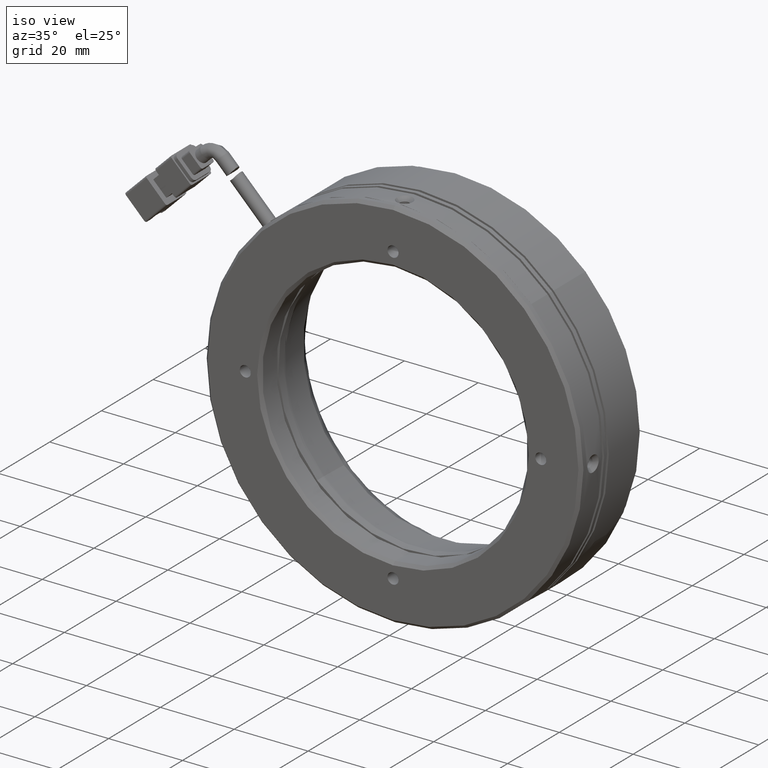
[diagram: clean part render]
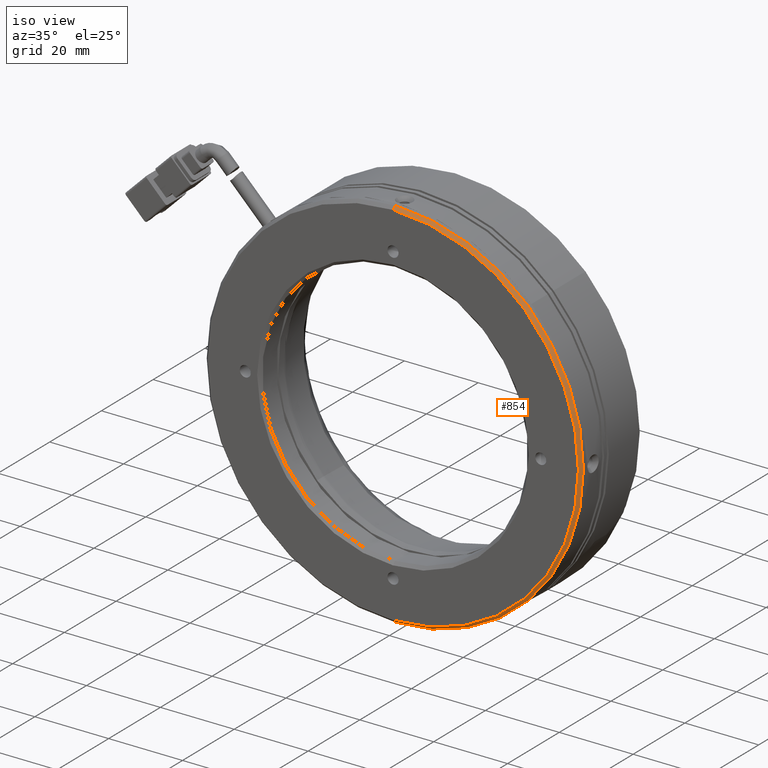
[diagram: same view with one face highlighted and labeled with its STEP entity id]
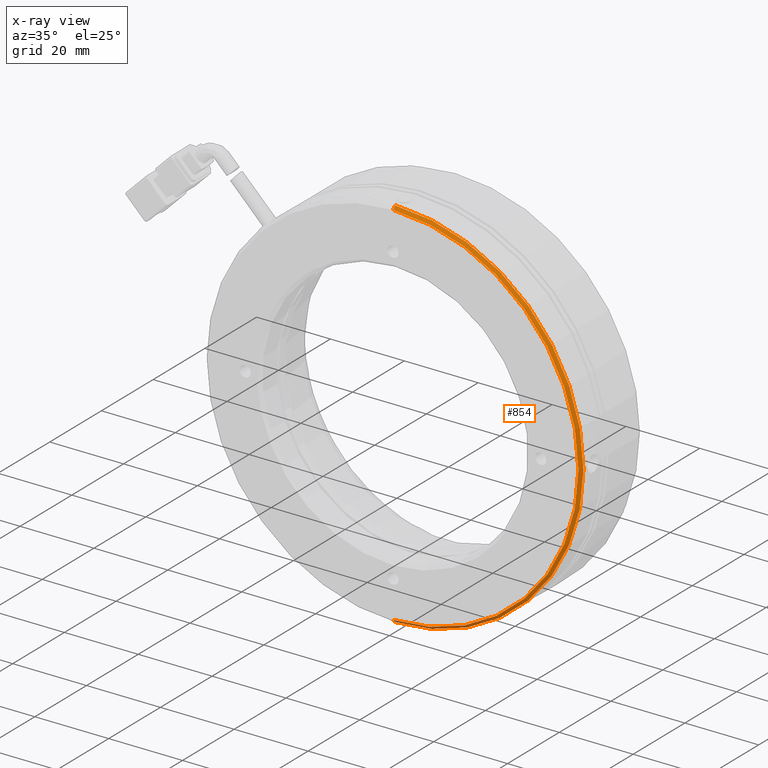
[diagram: x-ray of the same camera — body ghosted, the highlighted face saturated]
A machine part, iso view. The second image highlights one B-rep face of the part: STEP entity #854.
The next image is the same camera in x-ray: the body ghosted, the highlighted face saturated — about 0% of this face is hidden behind the body in this view.
In plain terms, the highlighted conical surface has half-angle 45 deg.
Its self-contained STEP definition (entity closure, byte-faithful):
#269 = CIRCLE ( 'NONE', #83889, 50.19999999999999600 ) ;
#489 = CARTESIAN_POINT ( 'NONE',  ( 6.245698675651500400E-015, 2.207147174518522700, -51.00000000000000000 ) ) ;
#854 = ADVANCED_FACE ( 'NONE', ( #39566 ), #11143, .T. ) ;
#10391 = CARTESIAN_POINT ( 'NONE',  ( 6.196712803685607000E-015, 1.407147174518515100, -50.19999999999999600 ) ) ;
#11143 = CONICAL_SURFACE ( 'NONE', #20326, 51.00000000000000000, 0.7853981633974432800 ) ;
#12579 = DIRECTION ( 'NONE',  ( 0.0000000000000000000, 0.0000000000000000000, 1.000000000000000000 ) ) ;
#14169 = EDGE_CURVE ( 'NONE', #16855, #40500, #269, .T. ) ;
#15381 = DIRECTION ( 'NONE',  ( 0.0000000000000000000, 0.7071067811865511300, 0.7071067811865440200 ) ) ;
#16855 = VERTEX_POINT ( 'NONE', #83313 ) ;
#16929 = ORIENTED_EDGE ( 'NONE', *, *, #23184, .T. ) ;
#18189 = ORIENTED_EDGE ( 'NONE', *, *, #14169, .T. ) ;
#18509 = CARTESIAN_POINT ( 'NONE',  ( 0.0000000000000000000, 2.207147174518522700, 0.0000000000000000000 ) ) ;
#20326 = AXIS2_PLACEMENT_3D ( 'NONE', #18509, #22069, #12579 ) ;
#22069 = DIRECTION ( 'NONE',  ( 0.0000000000000000000, 1.000000000000000000, 0.0000000000000000000 ) ) ;
#23184 = EDGE_CURVE ( 'NONE', #85616, #83428, #34642, .T. ) ;
#24785 = DIRECTION ( 'NONE',  ( -0.0000000000000000000, -1.000000000000000000, -0.0000000000000000000 ) ) ;
#26084 = EDGE_CURVE ( 'NONE', #16855, #83428, #55281, .T. ) ;
#27539 = DIRECTION ( 'NONE',  ( 0.0000000000000000000, 1.000000000000000000, 0.0000000000000000000 ) ) ;
#30409 = CARTESIAN_POINT ( 'NONE',  ( 0.0000000000000000000, 2.207147174518524000, -51.00000000000000700 ) ) ;
#34642 = CIRCLE ( 'NONE', #68210, 51.00000000000000700 ) ;
#35941 = VECTOR ( 'NONE', #15381, 1000.000000000000000 ) ;
#39566 = FACE_OUTER_BOUND ( 'NONE', #74584, .T. ) ;
#40500 = VERTEX_POINT ( 'NONE', #10391 ) ;
#40869 = EDGE_CURVE ( 'NONE', #40500, #85616, #53739, .T. ) ;
#44009 = DIRECTION ( 'NONE',  ( 8.659560562354889700E-017, 0.7071067811865511300, -0.7071067811865440200 ) ) ;
#53739 = LINE ( 'NONE', #489, #73072 ) ;
#55281 = LINE ( 'NONE', #58880, #35941 ) ;
#58880 = CARTESIAN_POINT ( 'NONE',  ( 0.0000000000000000000, 2.207147174518522700, 51.00000000000000000 ) ) ;
#64638 = ORIENTED_EDGE ( 'NONE', *, *, #26084, .F. ) ;
#68210 = AXIS2_PLACEMENT_3D ( 'NONE', #68301, #24785, #75660 ) ;
#68301 = CARTESIAN_POINT ( 'NONE',  ( 0.0000000000000000000, 2.207147174518524000, 0.0000000000000000000 ) ) ;
#71090 = CARTESIAN_POINT ( 'NONE',  ( 0.0000000000000000000, 1.407147174518515100, 0.0000000000000000000 ) ) ;
#73072 = VECTOR ( 'NONE', #44009, 1000.000000000000000 ) ;
#74584 = EDGE_LOOP ( 'NONE', ( #18189, #87623, #16929, #64638 ) ) ;
#75660 = DIRECTION ( 'NONE',  ( 0.0000000000000000000, 4.251773225433350400E-017, 1.000000000000000000 ) ) ;
#78420 = DIRECTION ( 'NONE',  ( 0.0000000000000000000, 0.0000000000000000000, 1.000000000000000000 ) ) ;
#81294 = CARTESIAN_POINT ( 'NONE',  ( 6.245698675651502000E-015, 2.207147174518524000, 51.00000000000000700 ) ) ;
#83313 = CARTESIAN_POINT ( 'NONE',  ( 0.0000000000000000000, 1.407147174518515100, 50.19999999999999600 ) ) ;
#83428 = VERTEX_POINT ( 'NONE', #81294 ) ;
#83889 = AXIS2_PLACEMENT_3D ( 'NONE', #71090, #27539, #78420 ) ;
#85616 = VERTEX_POINT ( 'NONE', #30409 ) ;
#87623 = ORIENTED_EDGE ( 'NONE', *, *, #40869, .T. ) ;